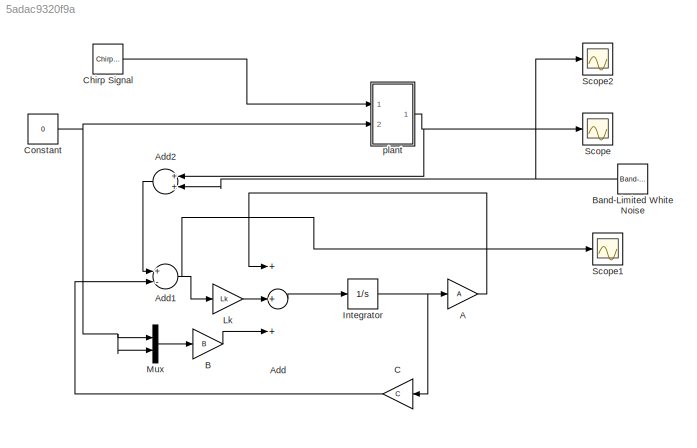
MODEL slx_5adac9320f9a
KIND model
CONFIG AbsTol = auto
CONFIG FixedStep = auto
CONFIG MaxStep = auto
CONFIG MinStep = auto
CONFIG RelTol = 1e-3
CONFIG SampleTimeConstraint = Unconstrained
CONFIG Solver = ode45
CONFIG SolverMode = Auto
CONFIG SolverName = ode45
CONFIG StartTime = 0.0
CONFIG StopTime = 10.0
BLOCK [Gain] A
  Gain = A
  Multiplication = Matrix(K*u)
  OutDataTypeStr = Inherit: Inherit via internal rule
  ParamDataTypeStr = Inherit: Inherit via internal rule
  SaturateOnIntegerOverflow = off
BLOCK [Sum] Add
  InputSameDT = off
  Inputs = +++
  OutDataTypeStr = Inherit: Inherit via internal rule
  Ports = [3, 1]
  SaturateOnIntegerOverflow = off
BLOCK [Sum] Add1
  InputSameDT = off
  Inputs = +-
  OutDataTypeStr = Inherit: Inherit via internal rule
  Ports = [2, 1]
  SaturateOnIntegerOverflow = off
BLOCK [Sum] Add2
  InputSameDT = off
  OutDataTypeStr = Inherit: Inherit via internal rule
  Ports = [2, 1]
  SaturateOnIntegerOverflow = off
BLOCK [Gain] B
  Gain = B
  Multiplication = Matrix(K*u)
  OutDataTypeStr = Inherit: Inherit via internal rule
  ParamDataTypeStr = Inherit: Inherit via internal rule
  SaturateOnIntegerOverflow = off
BLOCK [Reference] Band-Limited White Noise  REF=simulink/Sources/Band-Limited
White Noise
  Cov = [0.000001]
  Ports = [0, 1]
  SourceBlock = simulink/Sources/Band-Limited\nWhite Noise
  SourceType = Band-Limited White Noise.
  Ts = 0.001
  VectorParams1D = on
  seed = [23341]
BLOCK [Gain] C
  Gain = C
  Multiplication = Matrix(K*u)
  OutDataTypeStr = Inherit: Inherit via internal rule
  ParamDataTypeStr = Inherit: Inherit via internal rule
  SaturateOnIntegerOverflow = off
BLOCK [Reference] Chirp Signal  REF=simulink/Sources/Chirp Signal
  Ports = [0, 1]
  SourceBlock = simulink/Sources/Chirp Signal
  SourceType = chirp
  T = 10
  VectorParams1D = on
  f1 = 0.1
  f2 = 100
BLOCK [Constant] Constant
  Value = 0
BLOCK [Integrator] Integrator
  Ports = [1, 1]
BLOCK [Gain] Lk
  Gain = Lk
  Multiplication = Matrix(K*u)
  OutDataTypeStr = Inherit: Inherit via internal rule
  ParamDataTypeStr = Inherit: Inherit via internal rule
  SaturateOnIntegerOverflow = off
BLOCK [Mux] Mux
  DisplayOption = bar
  Inputs = 2
  Ports = [2, 1]
BLOCK [Scope] Scope
  Floating = off
  LimitDataPoints = off
  NumInputPorts = 1
  Ports = [1]
BLOCK [Scope] Scope1
  Floating = off
  LimitDataPoints = off
  NumInputPorts = 1
  Ports = [1]
  SaveName = ScopeData1
BLOCK [Scope] Scope2
  Floating = off
  LimitDataPoints = off
  NumInputPorts = 1
  Ports = [1]
  SaveName = ScopeData2
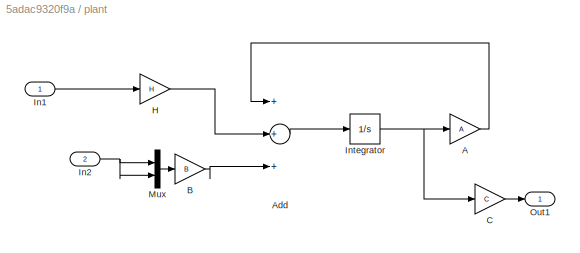
BLOCK [SubSystem] plant
  Ports = [2, 1]
  RequestExecContextInheritance = off
BLOCK [Gain] plant/A
  Gain = A
  Multiplication = Matrix(K*u)
  OutDataTypeStr = Inherit: Inherit via internal rule
  ParamDataTypeStr = Inherit: Inherit via internal rule
  SaturateOnIntegerOverflow = off
BLOCK [Sum] plant/Add
  InputSameDT = off
  Inputs = +++
  OutDataTypeStr = Inherit: Inherit via internal rule
  Ports = [3, 1]
  SaturateOnIntegerOverflow = off
BLOCK [Gain] plant/B 
  Gain = B
  Multiplication = Matrix(K*u)
  OutDataTypeStr = Inherit: Inherit via internal rule
  ParamDataTypeStr = Inherit: Inherit via internal rule
  SaturateOnIntegerOverflow = off
BLOCK [Gain] plant/C
  Gain = C
  Multiplication = Matrix(K*u)
  OutDataTypeStr = Inherit: Inherit via internal rule
  ParamDataTypeStr = Inherit: Inherit via internal rule
  SaturateOnIntegerOverflow = off
BLOCK [Gain] plant/H
  Gain = H
  Multiplication = Matrix(K*u)
  OutDataTypeStr = Inherit: Inherit via internal rule
  ParamDataTypeStr = Inherit: Inherit via internal rule
  SaturateOnIntegerOverflow = off
BLOCK [Inport] plant/In1
  IconDisplay = Port number
BLOCK [Inport] plant/In2
  IconDisplay = Port number
  Port = 2
BLOCK [Integrator] plant/Integrator
  Ports = [1, 1]
BLOCK [Mux] plant/Mux
  DisplayOption = bar
  Inputs = 2
  Ports = [2, 1]
BLOCK [Outport] plant/Out1
  IconDisplay = Port number
LINE A:1 -> Add:1
NET Add1:1 -> Lk:1, Scope1:1
LINE Add2:1 -> Add1:1
LINE Add:1 -> Integrator:1
LINE B:1 -> Add:3
NET Band-Limited White Noise:1 -> Add2:2, Scope2:1
LINE C:1 -> Add1:2
LINE Chirp Signal:1 -> plant:1
NET Constant:1 -> Mux:1, Mux:2, plant:2
NET Integrator:1 -> A:1, C:1
LINE Lk:1 -> Add:2
LINE Mux:1 -> B:1
LINE plant/A:1 -> plant/Add:1
LINE plant/Add:1 -> plant/Integrator:1
LINE plant/B :1 -> plant/Add:3
LINE plant/C:1 -> plant/Out1:1
LINE plant/H:1 -> plant/Add:2
LINE plant/In1:1 -> plant/H:1
NET plant/In2:1 -> plant/Mux:1, plant/Mux:2
NET plant/Integrator:1 -> plant/A:1, plant/C:1
LINE plant/Mux:1 -> plant/B :1
NET plant:1 -> Add2:1, Scope:1
note: NET lines group one-source signal fan-out (src -> all destinations, sorted); 1:1 wires keep LINE
